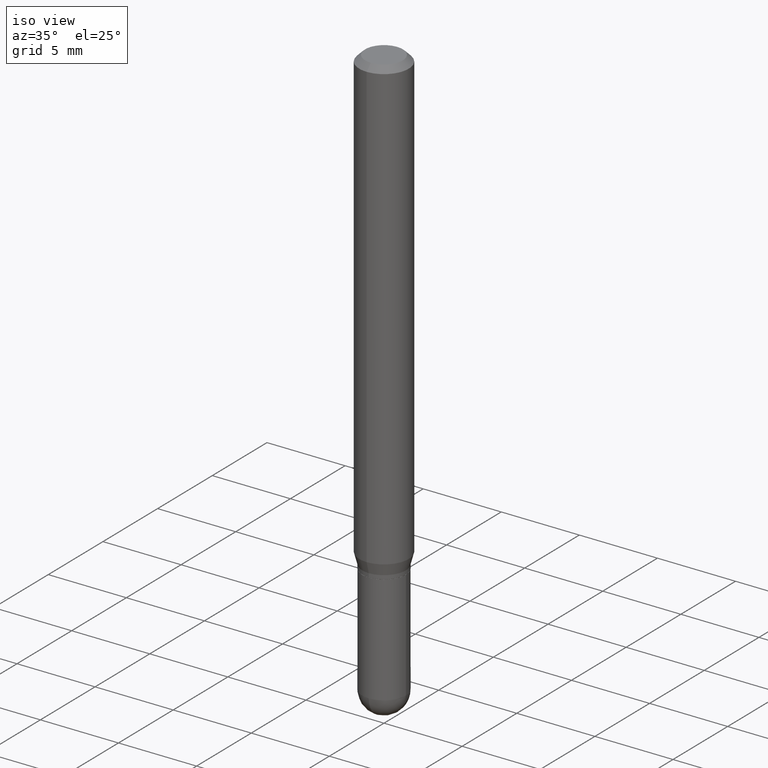
[diagram: clean part render]
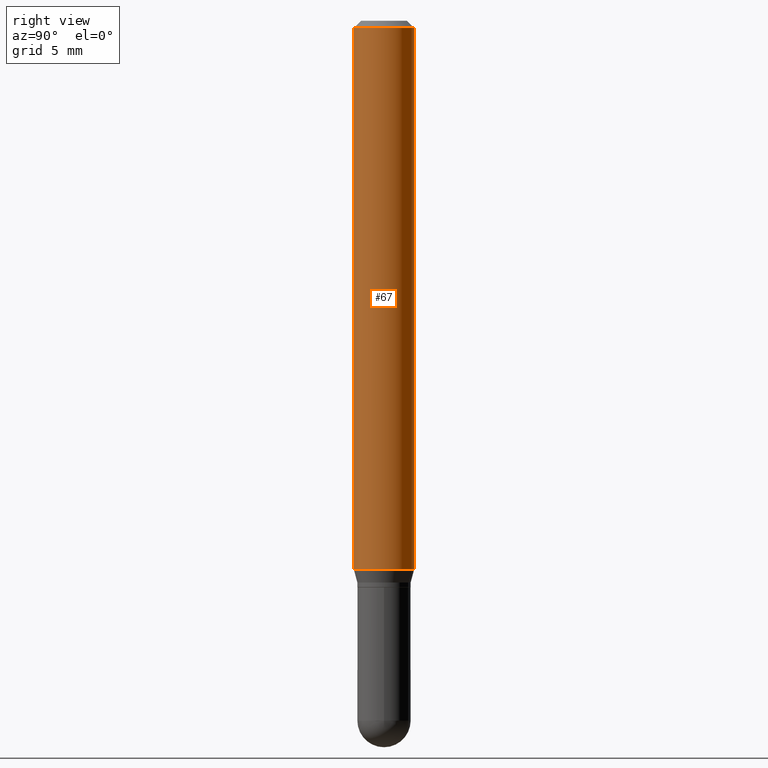
[diagram: tour spotlight — one face highlighted and labeled with its STEP entity id]
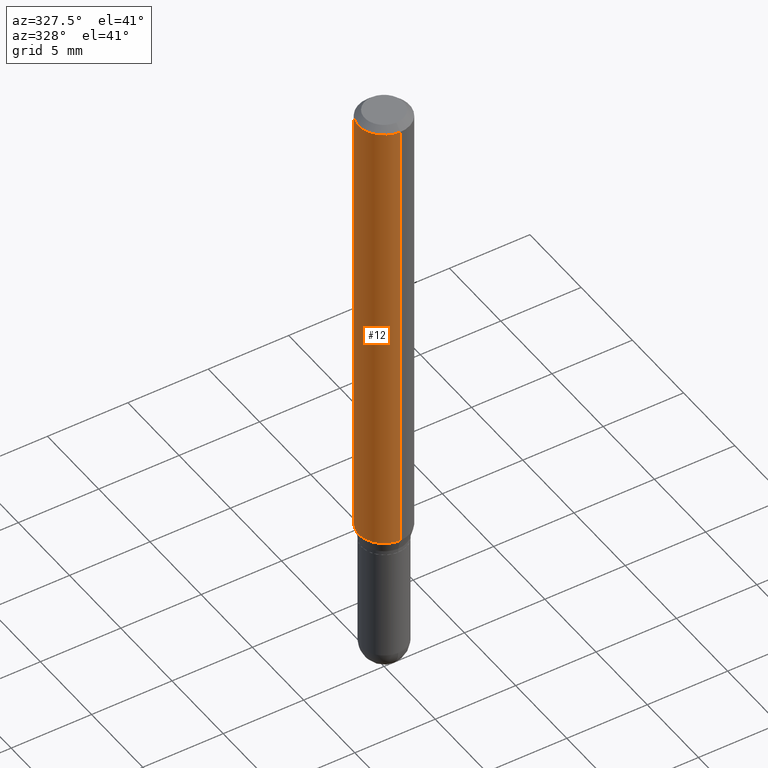
[diagram: tour spotlight — one face highlighted and labeled with its STEP entity id]
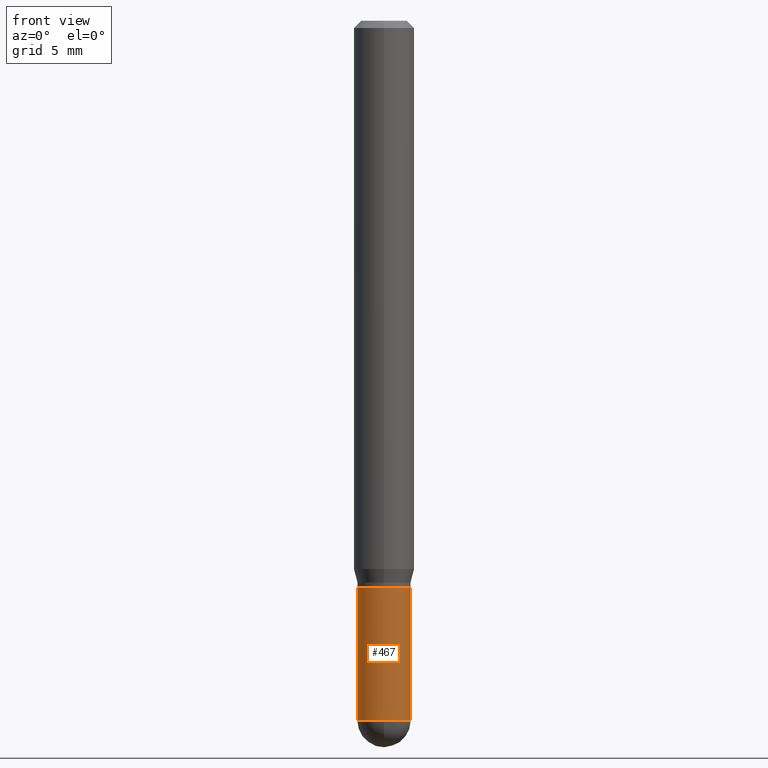
[diagram: tour spotlight — one face highlighted and labeled with its STEP entity id]
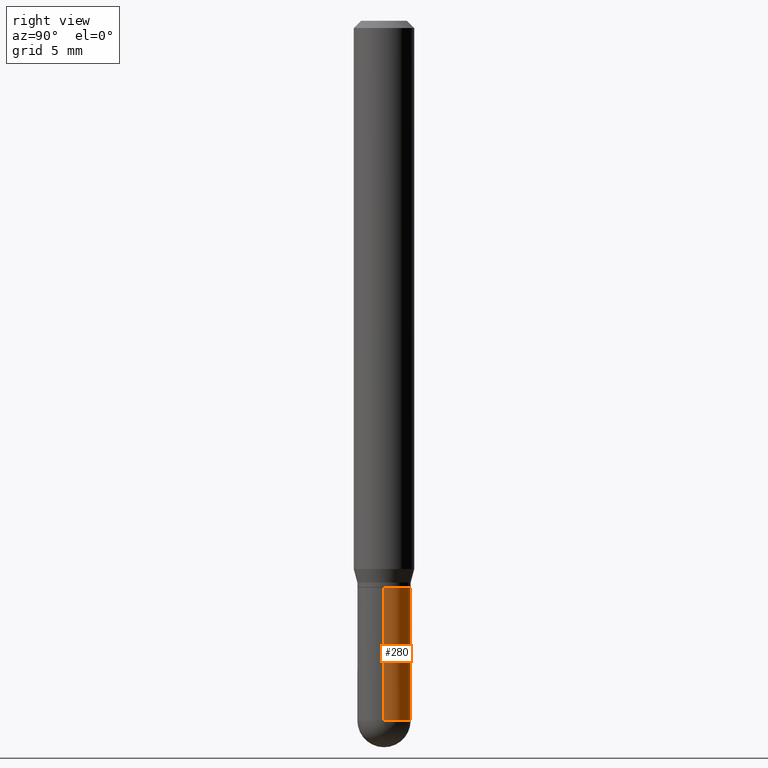
[diagram: tour spotlight — one face highlighted and labeled with its STEP entity id]
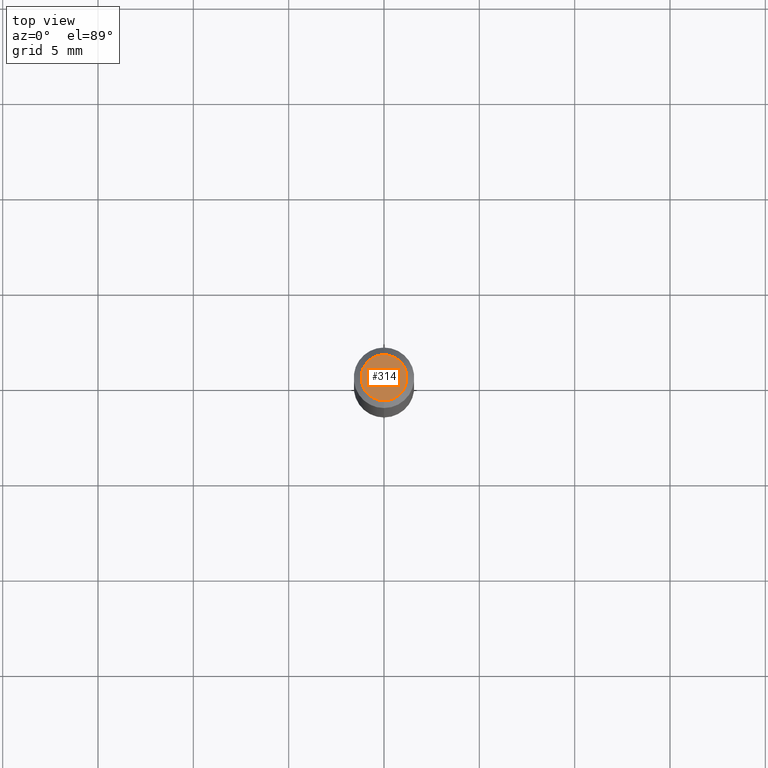
[diagram: tour spotlight — one face highlighted and labeled with its STEP entity id]
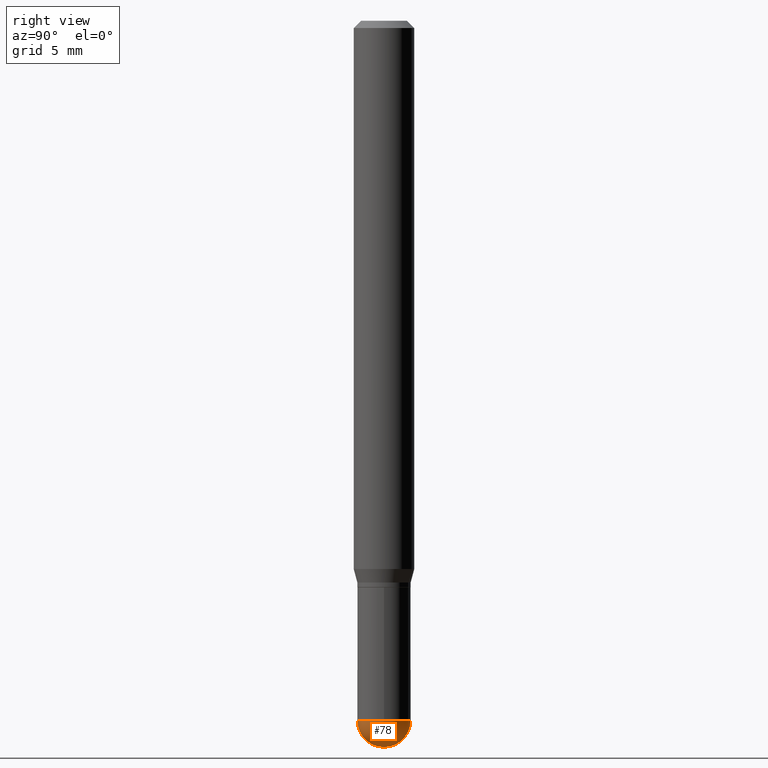
[diagram: tour spotlight — one face highlighted and labeled with its STEP entity id]
A machine part: a face-by-face anatomy tour. The part has 17 B-rep faces; the first image is the clean iso view, then the 6 largest visible faces are spotlighted one at a time (largest first), each with its STEP entity span.

Face 1 — right view, entity #67. In plain terms, the highlighted cylindrical surface (edge-blend (fillet) strip) has radius 1.5875 mm, axis along (-0, 0, 1).
Definition (entity closure, byte-faithful):
#4 = CARTESIAN_POINT ( 'NONE',  ( -4.364351673553640100E-16, -0.06250000000000395517, -1.132009618943233598 ) ) ;
#9 = ORIENTED_EDGE ( 'NONE', *, *, #141, .T. ) ;
#21 = CIRCLE ( 'NONE', #147, 0.06250000000000000000 ) ;
#26 = ORIENTED_EDGE ( 'NONE', *, *, #411, .F. ) ;
#27 = AXIS2_PLACEMENT_3D ( 'NONE', #403, #86, #250 ) ;
#63 = CARTESIAN_POINT ( 'NONE',  ( -4.364351673553916201E-16, -0.06250000000000000000, 2.182096796277363005E-16 ) ) ;
#64 = CARTESIAN_POINT ( 'NONE',  ( 4.440892098500625669E-16, 0.06250000000000000000, -2.182096796277363005E-16 ) ) ;
#67 = ADVANCED_FACE ( 'NONE', ( #440 ), #133, .T. ) ;
#74 = EDGE_LOOP ( 'NONE', ( #9, #502, #26, #499 ) ) ;
#86 = DIRECTION ( 'NONE',  ( -2.445557116082537122E-29, 3.491354874043780807E-15, 1.000000000000000000 ) ) ;
#91 = VERTEX_POINT ( 'NONE', #158 ) ;
#104 = DIRECTION ( 'NONE',  ( -2.445557116082537122E-29, 3.491354874043780807E-15, 1.000000000000000000 ) ) ;
#108 = CIRCLE ( 'NONE', #425, 0.06250000000000000000 ) ;
#115 = CARTESIAN_POINT ( 'NONE',  ( 4.440892098500901277E-16, 0.06249999999999603789, -1.132009618943234264 ) ) ;
#133 = CYLINDRICAL_SURFACE ( 'NONE', #27, 0.06250000000000000000 ) ;
#141 = EDGE_CURVE ( 'NONE', #354, #511, #108, .T. ) ;
#144 = CARTESIAN_POINT ( 'NONE',  ( -4.364351673553912750E-16, -0.06250000000000005551, -0.01499999999999979128 ) ) ;
#147 = AXIS2_PLACEMENT_3D ( 'NONE', #222, #104, #456 ) ;
#158 = CARTESIAN_POINT ( 'NONE',  ( 4.440892098500904235E-16, 0.06249999999999995143, -0.01500000000000022669 ) ) ;
#213 = VERTEX_POINT ( 'NONE', #144 ) ;
#222 = CARTESIAN_POINT ( 'NONE',  ( 3.668335674123808416E-31, -5.237032311065674440E-17, -0.01500000000000000812 ) ) ;
#229 = EDGE_CURVE ( 'NONE', #354, #213, #413, .T. ) ;
#250 = DIRECTION ( 'NONE',  ( -6.982962677686265922E-15, -1.000000000000000000, 3.491354874043780807E-15 ) ) ;
#293 = VECTOR ( 'NONE', #453, 39.37007874015748143 ) ;
#309 = DIRECTION ( 'NONE',  ( -6.982962677686265922E-15, -1.000000000000000000, 4.370956789862821150E-15 ) ) ;
#321 = CARTESIAN_POINT ( 'NONE',  ( 2.768394179080506773E-29, -3.952247300561902439E-15, -1.132009618943233820 ) ) ;
#354 = VERTEX_POINT ( 'NONE', #4 ) ;
#374 = DIRECTION ( 'NONE',  ( -2.445557116082537122E-29, 3.491354874043780807E-15, 1.000000000000000000 ) ) ;
#380 = VECTOR ( 'NONE', #374, 39.37007874015748143 ) ;
#403 = CARTESIAN_POINT ( 'NONE',  ( 0.000000000000000000, 0.000000000000000000, 0.000000000000000000 ) ) ;
#411 = EDGE_CURVE ( 'NONE', #213, #91, #21, .T. ) ;
#413 = LINE ( 'NONE', #63, #380 ) ;
#415 = LINE ( 'NONE', #64, #293 ) ;
#425 = AXIS2_PLACEMENT_3D ( 'NONE', #321, #484, #309 ) ;
#440 = FACE_OUTER_BOUND ( 'NONE', #74, .T. ) ;
#453 = DIRECTION ( 'NONE',  ( -2.445557116082537122E-29, 3.491354874043780807E-15, 1.000000000000000000 ) ) ;
#456 = DIRECTION ( 'NONE',  ( -6.982962677686265922E-15, -1.000000000000000000, 3.483106191921935554E-15 ) ) ;
#462 = EDGE_CURVE ( 'NONE', #511, #91, #415, .T. ) ;
#484 = DIRECTION ( 'NONE',  ( -2.445557116082537122E-29, 3.491354874043780807E-15, 1.000000000000000000 ) ) ;
#499 = ORIENTED_EDGE ( 'NONE', *, *, #229, .F. ) ;
#502 = ORIENTED_EDGE ( 'NONE', *, *, #462, .T. ) ;
#511 = VERTEX_POINT ( 'NONE', #115 ) ;

Face 2 — auxiliary view, entity #12. In plain terms, the highlighted cylindrical surface (edge-blend (fillet) strip) has radius 1.5875 mm, axis along (-0, 0, 1).
Definition (entity closure, byte-faithful):
#4 = CARTESIAN_POINT ( 'NONE',  ( -4.364351673553640100E-16, -0.06250000000000395517, -1.132009618943233598 ) ) ;
#6 = EDGE_CURVE ( 'NONE', #511, #354, #65, .T. ) ;
#12 = ADVANCED_FACE ( 'NONE', ( #307 ), #463, .T. ) ;
#30 = EDGE_CURVE ( 'NONE', #91, #213, #345, .T. ) ;
#57 = ORIENTED_EDGE ( 'NONE', *, *, #462, .F. ) ;
#63 = CARTESIAN_POINT ( 'NONE',  ( -4.364351673553916201E-16, -0.06250000000000000000, 2.182096796277363005E-16 ) ) ;
#64 = CARTESIAN_POINT ( 'NONE',  ( 4.440892098500625669E-16, 0.06250000000000000000, -2.182096796277363005E-16 ) ) ;
#65 = CIRCLE ( 'NONE', #267, 0.06250000000000000000 ) ;
#69 = DIRECTION ( 'NONE',  ( -2.445557116082537122E-29, 3.491354874043780807E-15, 1.000000000000000000 ) ) ;
#73 = AXIS2_PLACEMENT_3D ( 'NONE', #111, #69, #209 ) ;
#77 = DIRECTION ( 'NONE',  ( -2.445557116082537122E-29, 3.491354874043780807E-15, 1.000000000000000000 ) ) ;
#91 = VERTEX_POINT ( 'NONE', #158 ) ;
#95 = ORIENTED_EDGE ( 'NONE', *, *, #6, .T. ) ;
#111 = CARTESIAN_POINT ( 'NONE',  ( 0.000000000000000000, 0.000000000000000000, 0.000000000000000000 ) ) ;
#115 = CARTESIAN_POINT ( 'NONE',  ( 4.440892098500901277E-16, 0.06249999999999603789, -1.132009618943234264 ) ) ;
#129 = CARTESIAN_POINT ( 'NONE',  ( 3.668335674123808416E-31, -5.237032311065674440E-17, -0.01500000000000000812 ) ) ;
#144 = CARTESIAN_POINT ( 'NONE',  ( -4.364351673553912750E-16, -0.06250000000000005551, -0.01499999999999979128 ) ) ;
#158 = CARTESIAN_POINT ( 'NONE',  ( 4.440892098500904235E-16, 0.06249999999999995143, -0.01500000000000022669 ) ) ;
#164 = ORIENTED_EDGE ( 'NONE', *, *, #229, .T. ) ;
#209 = DIRECTION ( 'NONE',  ( -6.982962677686265922E-15, -1.000000000000000000, 3.491354874043780807E-15 ) ) ;
#213 = VERTEX_POINT ( 'NONE', #144 ) ;
#229 = EDGE_CURVE ( 'NONE', #354, #213, #413, .T. ) ;
#247 = AXIS2_PLACEMENT_3D ( 'NONE', #129, #77, #437 ) ;
#265 = DIRECTION ( 'NONE',  ( -2.445557116082537122E-29, 3.491354874043780807E-15, 1.000000000000000000 ) ) ;
#267 = AXIS2_PLACEMENT_3D ( 'NONE', #343, #265, #505 ) ;
#293 = VECTOR ( 'NONE', #453, 39.37007874015748143 ) ;
#307 = FACE_OUTER_BOUND ( 'NONE', #509, .T. ) ;
#343 = CARTESIAN_POINT ( 'NONE',  ( 2.768394179080506773E-29, -3.952247300561902439E-15, -1.132009618943233820 ) ) ;
#345 = CIRCLE ( 'NONE', #247, 0.06250000000000000000 ) ;
#354 = VERTEX_POINT ( 'NONE', #4 ) ;
#374 = DIRECTION ( 'NONE',  ( -2.445557116082537122E-29, 3.491354874043780807E-15, 1.000000000000000000 ) ) ;
#380 = VECTOR ( 'NONE', #374, 39.37007874015748143 ) ;
#413 = LINE ( 'NONE', #63, #380 ) ;
#415 = LINE ( 'NONE', #64, #293 ) ;
#437 = DIRECTION ( 'NONE',  ( -6.982962677686265922E-15, -1.000000000000000000, 3.483106191921935554E-15 ) ) ;
#445 = ORIENTED_EDGE ( 'NONE', *, *, #30, .F. ) ;
#453 = DIRECTION ( 'NONE',  ( -2.445557116082537122E-29, 3.491354874043780807E-15, 1.000000000000000000 ) ) ;
#462 = EDGE_CURVE ( 'NONE', #511, #91, #415, .T. ) ;
#463 = CYLINDRICAL_SURFACE ( 'NONE', #73, 0.06250000000000000000 ) ;
#505 = DIRECTION ( 'NONE',  ( -6.982962677686265922E-15, -1.000000000000000000, 4.370956789862821150E-15 ) ) ;
#509 = EDGE_LOOP ( 'NONE', ( #57, #95, #164, #445 ) ) ;
#511 = VERTEX_POINT ( 'NONE', #115 ) ;

Face 3 — front view, entity #467. In plain terms, the highlighted cylindrical surface (edge-blend (fillet) strip) has radius 1.397 mm, axis along (-0, 0, 1).
Definition (entity closure, byte-faithful):
#3 = CARTESIAN_POINT ( 'NONE',  ( 0.05500000000000000028, -3.840629472727446888E-16, 2.681897226687764826E-30 ) ) ;
#5 = DIRECTION ( 'NONE',  ( -2.445468806185136597E-29, 3.491481338843145583E-15, 1.000000000000000000 ) ) ;
#14 = DIRECTION ( 'NONE',  ( 1.000000000000000000, -6.982962677686262766E-15, 0.000000000000000000 ) ) ;
#18 = VERTEX_POINT ( 'NONE', #283 ) ;
#22 = CYLINDRICAL_SURFACE ( 'NONE', #61, 0.05500000000000000028 ) ;
#25 = CARTESIAN_POINT ( 'NONE',  ( -0.05500000000000000028, -4.174313345869358610E-15, -1.170000000000000151 ) ) ;
#39 = CIRCLE ( 'NONE', #325, 0.05500000000000000028 ) ;
#49 = DIRECTION ( 'NONE',  ( 1.000000000000000000, -6.982962677686262766E-15, 0.000000000000000000 ) ) ;
#53 = VERTEX_POINT ( 'NONE', #357 ) ;
#61 = AXIS2_PLACEMENT_3D ( 'NONE', #252, #375, #179 ) ;
#85 = EDGE_CURVE ( 'NONE', #166, #18, #226, .T. ) ;
#94 = DIRECTION ( 'NONE',  ( -2.445468806185136597E-29, 3.491481338843145583E-15, 1.000000000000000000 ) ) ;
#116 = VERTEX_POINT ( 'NONE', #312 ) ;
#117 = EDGE_CURVE ( 'NONE', #203, #53, #39, .T. ) ;
#122 = DIRECTION ( 'NONE',  ( -2.445468806185136877E-29, 3.491481338843145188E-15, 1.000000000000000000 ) ) ;
#128 = EDGE_CURVE ( 'NONE', #18, #53, #472, .T. ) ;
#135 = AXIS2_PLACEMENT_3D ( 'NONE', #444, #5, #49 ) ;
#136 = VECTOR ( 'NONE', #301, 39.37007874015748143 ) ;
#143 = VECTOR ( 'NONE', #122, 39.37007874015748143 ) ;
#161 = CARTESIAN_POINT ( 'NONE',  ( -3.907985046680198520E-16, -0.05500000000000507955, -1.444999999999999840 ) ) ;
#166 = VERTEX_POINT ( 'NONE', #161 ) ;
#179 = DIRECTION ( 'NONE',  ( 1.000000000000000000, -6.982962677686266711E-15, 4.876176775795935793E-29 ) ) ;
#185 = AXIS2_PLACEMENT_3D ( 'NONE', #478, #285, #416 ) ;
#187 = CARTESIAN_POINT ( 'NONE',  ( -0.05500000000000000028, 3.907985046680551042E-16, -2.705414299640198362E-30 ) ) ;
#203 = VERTEX_POINT ( 'NONE', #25 ) ;
#224 = ORIENTED_EDGE ( 'NONE', *, *, #381, .F. ) ;
#226 = CIRCLE ( 'NONE', #135, 0.05500000000000000028 ) ;
#252 = CARTESIAN_POINT ( 'NONE',  ( 0.000000000000000000, 0.000000000000000000, 0.000000000000000000 ) ) ;
#276 = ORIENTED_EDGE ( 'NONE', *, *, #128, .T. ) ;
#283 = CARTESIAN_POINT ( 'NONE',  ( 0.05500000000000000028, -4.949174797810157466E-15, -1.445000000000000062 ) ) ;
#285 = DIRECTION ( 'NONE',  ( -2.445468806185136597E-29, 3.491481338843145583E-15, 1.000000000000000000 ) ) ;
#297 = ORIENTED_EDGE ( 'NONE', *, *, #85, .T. ) ;
#301 = DIRECTION ( 'NONE',  ( -2.445468806185136877E-29, 3.491481338843145188E-15, 1.000000000000000000 ) ) ;
#312 = CARTESIAN_POINT ( 'NONE',  ( -0.05500000000000000028, -4.174313345869358610E-15, -1.445000000000000062 ) ) ;
#322 = EDGE_LOOP ( 'NONE', ( #224, #485, #297, #276, #382 ) ) ;
#325 = AXIS2_PLACEMENT_3D ( 'NONE', #360, #94, #14 ) ;
#357 = CARTESIAN_POINT ( 'NONE',  ( 0.05500000000000000028, -4.469096113719225052E-15, -1.170000000000000151 ) ) ;
#360 = CARTESIAN_POINT ( 'NONE',  ( 2.861198503236610065E-29, -4.085033166446480067E-15, -1.170000000000000151 ) ) ;
#375 = DIRECTION ( 'NONE',  ( -2.445468806185136597E-29, 3.491481338843145583E-15, 1.000000000000000000 ) ) ;
#381 = EDGE_CURVE ( 'NONE', #116, #203, #392, .T. ) ;
#382 = ORIENTED_EDGE ( 'NONE', *, *, #117, .F. ) ;
#392 = LINE ( 'NONE', #187, #136 ) ;
#401 = CIRCLE ( 'NONE', #185, 0.05500000000000000028 ) ;
#416 = DIRECTION ( 'NONE',  ( 1.000000000000000000, -6.982962677686262766E-15, 0.000000000000000000 ) ) ;
#444 = CARTESIAN_POINT ( 'NONE',  ( 3.533702424937522517E-29, -5.045190534628345684E-15, -1.445000000000000062 ) ) ;
#447 = FACE_OUTER_BOUND ( 'NONE', #322, .T. ) ;
#467 = ADVANCED_FACE ( 'NONE', ( #447 ), #22, .T. ) ;
#472 = LINE ( 'NONE', #3, #143 ) ;
#478 = CARTESIAN_POINT ( 'NONE',  ( 3.533702424937522517E-29, -5.045190534628345684E-15, -1.445000000000000062 ) ) ;
#485 = ORIENTED_EDGE ( 'NONE', *, *, #504, .T. ) ;
#504 = EDGE_CURVE ( 'NONE', #116, #166, #401, .T. ) ;

Face 4 — right view, entity #280. In plain terms, the highlighted cylindrical surface (edge-blend (fillet) strip) has radius 1.397 mm, axis along (-0, 0, 1).
Definition (entity closure, byte-faithful):
#3 = CARTESIAN_POINT ( 'NONE',  ( 0.05500000000000000028, -3.840629472727446888E-16, 2.681897226687764826E-30 ) ) ;
#10 = CARTESIAN_POINT ( 'NONE',  ( 3.533702424937522517E-29, -5.045190534628345684E-15, -1.445000000000000062 ) ) ;
#17 = CARTESIAN_POINT ( 'NONE',  ( 3.533702424937522517E-29, -5.045190534628345684E-15, -1.445000000000000062 ) ) ;
#18 = VERTEX_POINT ( 'NONE', #283 ) ;
#25 = CARTESIAN_POINT ( 'NONE',  ( -0.05500000000000000028, -4.174313345869358610E-15, -1.170000000000000151 ) ) ;
#31 = EDGE_CURVE ( 'NONE', #18, #308, #184, .T. ) ;
#47 = ORIENTED_EDGE ( 'NONE', *, *, #381, .T. ) ;
#48 = CYLINDRICAL_SURFACE ( 'NONE', #464, 0.05500000000000000028 ) ;
#53 = VERTEX_POINT ( 'NONE', #357 ) ;
#92 = CIRCLE ( 'NONE', #219, 0.05500000000000000028 ) ;
#116 = VERTEX_POINT ( 'NONE', #312 ) ;
#122 = DIRECTION ( 'NONE',  ( -2.445468806185136877E-29, 3.491481338843145188E-15, 1.000000000000000000 ) ) ;
#128 = EDGE_CURVE ( 'NONE', #18, #53, #472, .T. ) ;
#136 = VECTOR ( 'NONE', #301, 39.37007874015748143 ) ;
#143 = VECTOR ( 'NONE', #122, 39.37007874015748143 ) ;
#149 = ORIENTED_EDGE ( 'NONE', *, *, #192, .F. ) ;
#172 = DIRECTION ( 'NONE',  ( -2.445468806185136597E-29, 3.491481338843145583E-15, 1.000000000000000000 ) ) ;
#177 = DIRECTION ( 'NONE',  ( -2.445468806185136597E-29, 3.491481338843145583E-15, 1.000000000000000000 ) ) ;
#184 = CIRCLE ( 'NONE', #486, 0.05500000000000000028 ) ;
#187 = CARTESIAN_POINT ( 'NONE',  ( -0.05500000000000000028, 3.907985046680551042E-16, -2.705414299640198362E-30 ) ) ;
#192 = EDGE_CURVE ( 'NONE', #53, #203, #92, .T. ) ;
#203 = VERTEX_POINT ( 'NONE', #25 ) ;
#206 = ORIENTED_EDGE ( 'NONE', *, *, #128, .F. ) ;
#219 = AXIS2_PLACEMENT_3D ( 'NONE', #333, #177, #329 ) ;
#237 = DIRECTION ( 'NONE',  ( 1.000000000000000000, -6.982962677686262766E-15, 0.000000000000000000 ) ) ;
#239 = CARTESIAN_POINT ( 'NONE',  ( 3.840629472727801875E-16, 0.05499999999999497652, -1.445000000000000284 ) ) ;
#278 = CARTESIAN_POINT ( 'NONE',  ( 0.000000000000000000, 0.000000000000000000, 0.000000000000000000 ) ) ;
#280 = ADVANCED_FACE ( 'NONE', ( #471 ), #48, .T. ) ;
#283 = CARTESIAN_POINT ( 'NONE',  ( 0.05500000000000000028, -4.949174797810157466E-15, -1.445000000000000062 ) ) ;
#301 = DIRECTION ( 'NONE',  ( -2.445468806185136877E-29, 3.491481338843145188E-15, 1.000000000000000000 ) ) ;
#308 = VERTEX_POINT ( 'NONE', #239 ) ;
#312 = CARTESIAN_POINT ( 'NONE',  ( -0.05500000000000000028, -4.174313345869358610E-15, -1.445000000000000062 ) ) ;
#319 = DIRECTION ( 'NONE',  ( -2.445468806185136597E-29, 3.491481338843145583E-15, 1.000000000000000000 ) ) ;
#324 = DIRECTION ( 'NONE',  ( 1.000000000000000000, -6.982962677686262766E-15, 0.000000000000000000 ) ) ;
#326 = ORIENTED_EDGE ( 'NONE', *, *, #344, .T. ) ;
#329 = DIRECTION ( 'NONE',  ( 1.000000000000000000, -6.982962677686262766E-15, 0.000000000000000000 ) ) ;
#333 = CARTESIAN_POINT ( 'NONE',  ( 2.861198503236610065E-29, -4.085033166446480067E-15, -1.170000000000000151 ) ) ;
#344 = EDGE_CURVE ( 'NONE', #308, #116, #460, .T. ) ;
#349 = DIRECTION ( 'NONE',  ( 1.000000000000000000, -6.982962677686266711E-15, 4.876176775795935793E-29 ) ) ;
#351 = DIRECTION ( 'NONE',  ( -2.445468806185136597E-29, 3.491481338843145583E-15, 1.000000000000000000 ) ) ;
#357 = CARTESIAN_POINT ( 'NONE',  ( 0.05500000000000000028, -4.469096113719225052E-15, -1.170000000000000151 ) ) ;
#361 = EDGE_LOOP ( 'NONE', ( #326, #47, #149, #206, #404 ) ) ;
#369 = AXIS2_PLACEMENT_3D ( 'NONE', #17, #172, #324 ) ;
#381 = EDGE_CURVE ( 'NONE', #116, #203, #392, .T. ) ;
#392 = LINE ( 'NONE', #187, #136 ) ;
#404 = ORIENTED_EDGE ( 'NONE', *, *, #31, .T. ) ;
#460 = CIRCLE ( 'NONE', #369, 0.05500000000000000028 ) ;
#464 = AXIS2_PLACEMENT_3D ( 'NONE', #278, #319, #349 ) ;
#471 = FACE_OUTER_BOUND ( 'NONE', #361, .T. ) ;
#472 = LINE ( 'NONE', #3, #143 ) ;
#486 = AXIS2_PLACEMENT_3D ( 'NONE', #10, #351, #237 ) ;

Face 5 — top view, entity #314. In plain terms, the highlighted planar face has unit normal (0, -0, -1).
Definition (entity closure, byte-faithful):
#38 = EDGE_LOOP ( 'NONE', ( #134, #170 ) ) ;
#44 = DIRECTION ( 'NONE',  ( -2.445557116082537122E-29, 3.491354874043780807E-15, 1.000000000000000000 ) ) ;
#45 = DIRECTION ( 'NONE',  ( -2.445557116082537122E-29, 3.491354874043780807E-15, 1.000000000000000000 ) ) ;
#52 = DIRECTION ( 'NONE',  ( -6.982962677686266711E-15, -1.000000000000000000, 3.491354874043780807E-15 ) ) ;
#60 = VERTEX_POINT ( 'NONE', #431 ) ;
#132 = DIRECTION ( 'NONE',  ( 6.982962677686265922E-15, 1.000000000000000000, -3.491354874043780807E-15 ) ) ;
#134 = ORIENTED_EDGE ( 'NONE', *, *, #266, .T. ) ;
#155 = VERTEX_POINT ( 'NONE', #240 ) ;
#170 = ORIENTED_EDGE ( 'NONE', *, *, #174, .T. ) ;
#174 = EDGE_CURVE ( 'NONE', #60, #155, #232, .T. ) ;
#201 = CARTESIAN_POINT ( 'NONE',  ( 2.168310828084403938E-46, -3.095549283347382873E-32, -8.866326669800925225E-18 ) ) ;
#232 = CIRCLE ( 'NONE', #427, 0.04749999999999999362 ) ;
#240 = CARTESIAN_POINT ( 'NONE',  ( 3.840629472727447874E-16, 0.04749999999999999362, -1.747056831868805136E-16 ) ) ;
#266 = EDGE_CURVE ( 'NONE', #155, #60, #268, .T. ) ;
#268 = CIRCLE ( 'NONE', #346, 0.04749999999999999362 ) ;
#286 = PLANE ( 'NONE',  #355 ) ;
#314 = ADVANCED_FACE ( 'NONE', ( #430 ), #286, .F. ) ;
#346 = AXIS2_PLACEMENT_3D ( 'NONE', #201, #44, #52 ) ;
#355 = AXIS2_PLACEMENT_3D ( 'NONE', #439, #435, #132 ) ;
#427 = AXIS2_PLACEMENT_3D ( 'NONE', #469, #45, #476 ) ;
#430 = FACE_OUTER_BOUND ( 'NONE', #38, .T. ) ;
#431 = CARTESIAN_POINT ( 'NONE',  ( -3.773273898774340269E-16, -0.04749999999999999362, 1.569730298472786601E-16 ) ) ;
#435 = DIRECTION ( 'NONE',  ( 2.445557116082536842E-29, -3.491354874043780807E-15, -1.000000000000000000 ) ) ;
#439 = CARTESIAN_POINT ( 'NONE',  ( 3.316907271900976096E-16, 0.04749999999999999362, -1.702725198519800564E-16 ) ) ;
#469 = CARTESIAN_POINT ( 'NONE',  ( 2.168310828084403938E-46, -3.095549283347382873E-32, -8.866326669800925225E-18 ) ) ;
#476 = DIRECTION ( 'NONE',  ( -6.982962677686266711E-15, -1.000000000000000000, 3.491354874043780807E-15 ) ) ;

Face 6 — right view, entity #78. In plain terms, the highlighted spherical surface has radius 1.397 mm.
Definition (entity closure, byte-faithful):
#5 = DIRECTION ( 'NONE',  ( -2.445468806185136597E-29, 3.491481338843145583E-15, 1.000000000000000000 ) ) ;
#10 = CARTESIAN_POINT ( 'NONE',  ( 3.533702424937522517E-29, -5.045190534628345684E-15, -1.445000000000000062 ) ) ;
#18 = VERTEX_POINT ( 'NONE', #283 ) ;
#31 = EDGE_CURVE ( 'NONE', #18, #308, #184, .T. ) ;
#49 = DIRECTION ( 'NONE',  ( 1.000000000000000000, -6.982962677686262766E-15, 0.000000000000000000 ) ) ;
#78 = ADVANCED_FACE ( 'NONE', ( #399 ), #287, .T. ) ;
#85 = EDGE_CURVE ( 'NONE', #166, #18, #226, .T. ) ;
#90 = DIRECTION ( 'NONE',  ( 6.982962677686266711E-15, 1.000000000000000000, -4.966996352116837554E-15 ) ) ;
#102 = AXIS2_PLACEMENT_3D ( 'NONE', #373, #188, #138 ) ;
#106 = EDGE_CURVE ( 'NONE', #481, #166, #300, .T. ) ;
#135 = AXIS2_PLACEMENT_3D ( 'NONE', #444, #5, #49 ) ;
#138 = DIRECTION ( 'NONE',  ( 6.982962677686265922E-15, 1.000000000000000000, 0.000000000000000000 ) ) ;
#152 = ORIENTED_EDGE ( 'NONE', *, *, #106, .F. ) ;
#161 = CARTESIAN_POINT ( 'NONE',  ( -3.907985046680198520E-16, -0.05500000000000507955, -1.444999999999999840 ) ) ;
#166 = VERTEX_POINT ( 'NONE', #161 ) ;
#184 = CIRCLE ( 'NONE', #486, 0.05500000000000000028 ) ;
#188 = DIRECTION ( 'NONE',  ( 1.000000000000000000, -6.982962677686265922E-15, 4.883557194083112340E-29 ) ) ;
#198 = AXIS2_PLACEMENT_3D ( 'NONE', #480, #246, #320 ) ;
#204 = DIRECTION ( 'NONE',  ( -1.000000000000000000, 6.982962677686266711E-15, -4.883557194083112340E-29 ) ) ;
#210 = EDGE_LOOP ( 'NONE', ( #152, #497, #417, #466 ) ) ;
#226 = CIRCLE ( 'NONE', #135, 0.05500000000000000028 ) ;
#237 = DIRECTION ( 'NONE',  ( 1.000000000000000000, -6.982962677686262766E-15, 0.000000000000000000 ) ) ;
#239 = CARTESIAN_POINT ( 'NONE',  ( 3.840629472727801875E-16, 0.05499999999999497652, -1.445000000000000284 ) ) ;
#246 = DIRECTION ( 'NONE',  ( -1.000000000000000000, 7.105427357601001070E-15, -4.926315508542082329E-29 ) ) ;
#257 = CARTESIAN_POINT ( 'NONE',  ( 3.665851501982462558E-29, -5.240589786962374592E-15, -1.500000000000000222 ) ) ;
#283 = CARTESIAN_POINT ( 'NONE',  ( 0.05500000000000000028, -4.949174797810157466E-15, -1.445000000000000062 ) ) ;
#287 = SPHERICAL_SURFACE ( 'NONE', #389, 0.05500000000000005579 ) ;
#291 = CARTESIAN_POINT ( 'NONE',  ( 3.528999010347036160E-29, -5.051926092023656149E-15, -1.445000000000000062 ) ) ;
#300 = CIRCLE ( 'NONE', #198, 0.05500000000000005579 ) ;
#308 = VERTEX_POINT ( 'NONE', #239 ) ;
#320 = DIRECTION ( 'NONE',  ( -7.105427357601000281E-15, -1.000000000000000000, 0.000000000000000000 ) ) ;
#351 = DIRECTION ( 'NONE',  ( -2.445468806185136597E-29, 3.491481338843145583E-15, 1.000000000000000000 ) ) ;
#373 = CARTESIAN_POINT ( 'NONE',  ( 3.528999010347036160E-29, -5.051926092023656149E-15, -1.445000000000000062 ) ) ;
#389 = AXIS2_PLACEMENT_3D ( 'NONE', #291, #204, #90 ) ;
#399 = FACE_OUTER_BOUND ( 'NONE', #210, .T. ) ;
#417 = ORIENTED_EDGE ( 'NONE', *, *, #31, .F. ) ;
#444 = CARTESIAN_POINT ( 'NONE',  ( 3.533702424937522517E-29, -5.045190534628345684E-15, -1.445000000000000062 ) ) ;
#457 = EDGE_CURVE ( 'NONE', #481, #308, #512, .T. ) ;
#466 = ORIENTED_EDGE ( 'NONE', *, *, #85, .F. ) ;
#480 = CARTESIAN_POINT ( 'NONE',  ( 3.528999010347036160E-29, -5.051926092023656149E-15, -1.445000000000000062 ) ) ;
#481 = VERTEX_POINT ( 'NONE', #257 ) ;
#486 = AXIS2_PLACEMENT_3D ( 'NONE', #10, #351, #237 ) ;
#497 = ORIENTED_EDGE ( 'NONE', *, *, #457, .T. ) ;
#512 = CIRCLE ( 'NONE', #102, 0.05500000000000005579 ) ;